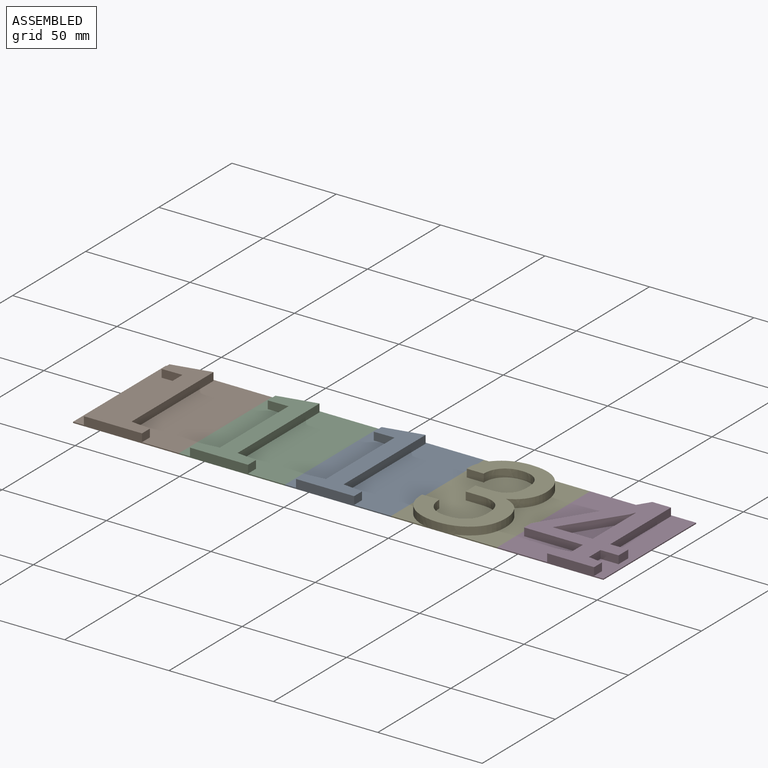
[diagram: assembled view]
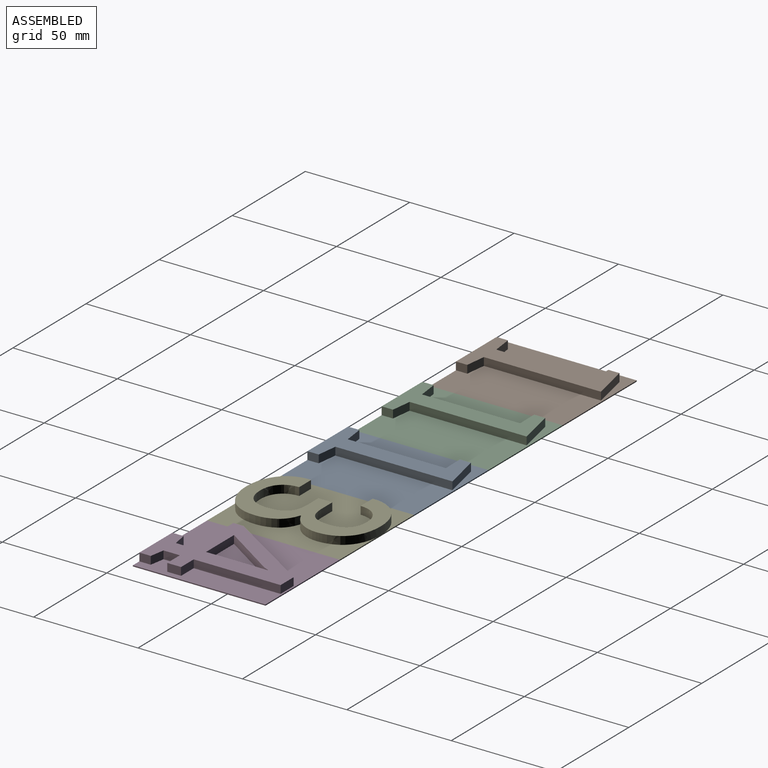
[diagram: assembled view, second angle]
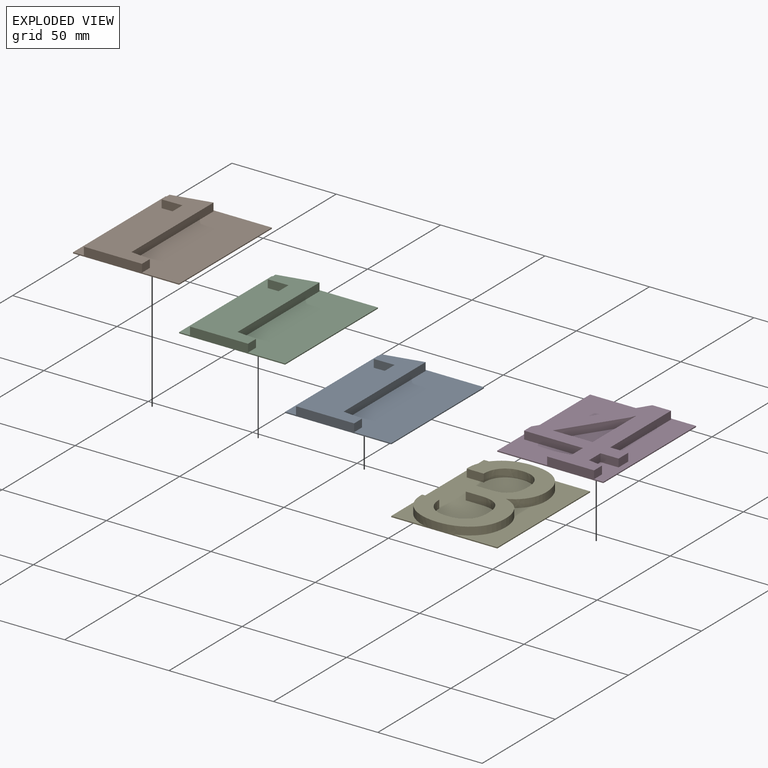
[diagram: exploded view]
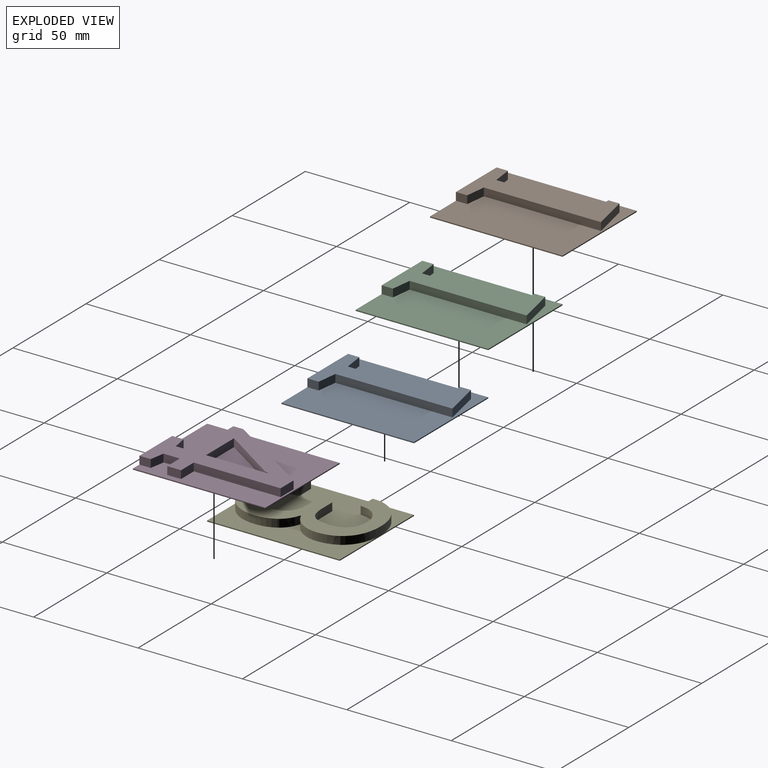
[diagram: exploded view, second angle]
ASSEMBLY  parts=5 mates=4
PART A: 16 faces, bbox 50.8x63.5x4.3 mm
  f0: plane 63.5x50.8mm, normal (0,0,1), area 2522.9mm2, adj f1,f2,f3,f4,f6,f7,f8,f9
  f1: plane 50.8x4.32mm, normal (0,-1,0), area 131.8mm2, adj f0,f2,f4,f5,f6,f14,f15
  f2: plane 63.5x0.51mm, normal (1,0,0), area 32.3mm2, adj f0,f1,f3,f5
  f3: plane 50.8x0.51mm, normal (0,1,0), area 25.8mm2, adj f0,f2,f4,f5
  f4: plane 63.5x0.51mm, normal (-1,0,0), area 32.3mm2, adj f0,f1,f3,f5
  f5: plane 63.5x50.8mm, normal (0,0,-1), area 3225.8mm2, adj f1,f2,f3,f4
  f6: plane 5.43x3.81mm, normal (1,0,0), area 20.7mm2, adj f0,f1,f7,f15
  f7: plane 9.65x3.81mm, normal (0.12,0.99,0), area 37mm2, adj f0,f6,f8,f15
  f8: plane 56.07x3.81mm, normal (1,0,0), area 213.6mm2, adj f0,f7,f9,f15
  f9: plane 18.34x3.96mm, normal (-0.21,0.98,0), area 71.5mm2, adj f0,f8,f10,f15
  f10: plane 5.31x3.81mm, normal (-1,0,0), area 20.2mm2, adj f0,f9,f11,f15
  f11: plane 9.85x3.81mm, normal (0.02,-1,0), area 37.5mm2, adj f0,f10,f12,f15
  f12: plane 46.99x3.81mm, normal (-1,0,0), area 179mm2, adj f0,f11,f13,f15
  f13: plane 9.69x3.81mm, normal (-0.12,0.99,0), area 37.2mm2, adj f0,f12,f14,f15
  f14: plane 5.43x3.81mm, normal (-1,0,0), area 20.7mm2, adj f0,f1,f13,f15
  f15: plane 62.7x27.99mm, normal (0,0,1), area 702.9mm2, adj f1,f6,f7,f8,f9,f10,f11,f12
PART B: same geometry as A
PART C: same geometry as A
PART D: 27 faces, bbox 50.8x63.5x4.3 mm
  f0: plane 63.5x50.8mm, normal (0,0,1), area 1796.9mm2, adj f1,f2,f3,f4,f10,f11,f12,f13
  f1: plane 50.8x4.32mm, normal (0,-1,0), area 111.5mm2, adj f0,f2,f4,f5,f10,f23,f25
  f2: plane 63.5x0.51mm, normal (1,0,0), area 32.3mm2, adj f0,f1,f3,f5
  f3: plane 50.8x0.51mm, normal (0,1,0), area 25.8mm2, adj f0,f2,f4,f5
  f4: plane 63.5x0.51mm, normal (-1,0,0), area 32.3mm2, adj f0,f1,f3,f5
  f5: plane 63.5x50.8mm, normal (0,0,-1), area 3225.8mm2, adj f1,f2,f3,f4
  f6: plane 19.13x3.81mm, normal (0,1,0), area 72.9mm2, adj f7,f24,f25,f26
  f7: plane 27.31x18mm, normal (0.84,-0.55,0), area 124.6mm2, adj f6,f8,f25,f26
  f8: plane 3.81x2.27mm, normal (0.93,-0.36,0), area 9.3mm2, adj f7,f9,f25,f26
  f9: plane 3.81x0.26mm, normal (-0.3,-0.95,0), area 1mm2, adj f8,f24,f25,f26
  f10: plane 5.43x3.81mm, normal (1,0,0), area 20.7mm2, adj f0,f1,f11,f25
  f11: plane 7.03x3.81mm, normal (0.17,0.99,0), area 27.2mm2, adj f0,f10,f12,f25
  f12: plane 7.84x3.81mm, normal (1,0,0), area 29.9mm2, adj f0,f11,f13,f25
  f13: plane 8.65x3.81mm, normal (0,-1,0), area 33mm2, adj f0,f12,f14,f25
  f14: plane 6.63x3.81mm, normal (1,0,0), area 25.3mm2, adj f0,f13,f15,f25
  f15: plane 8.65x3.81mm, normal (0,1,0), area 33mm2, adj f0,f14,f16,f25
  f16: plane 41.6x3.81mm, normal (1,0,0), area 158.5mm2, adj f0,f15,f17,f25
  f17: plane 8.96x3.81mm, normal (0,1,0), area 34.1mm2, adj f0,f16,f18,f25
  f18: plane 43.45x27.64mm, normal (-0.84,0.54,0), area 196.2mm2, adj f0,f17,f19,f25
  f19: plane 4.78x3.81mm, normal (-1,0,0), area 18.2mm2, adj f0,f18,f20,f25
  f20: plane 28.17x3.81mm, normal (0,-1,0), area 107.3mm2, adj f0,f19,f21,f25
  f21: plane 7.84x3.81mm, normal (-1,0,0), area 29.9mm2, adj f0,f20,f22,f25
  f22: plane 7.03x3.81mm, normal (-0.17,0.99,0), area 27.2mm2, adj f0,f21,f23,f25
  f23: plane 5.43x3.81mm, normal (-1,0,0), area 20.7mm2, adj f0,f1,f22,f25
  f24: plane 29.5x3.81mm, normal (-1,0,0), area 112.4mm2, adj f6,f9,f25,f26
  f25: plane 62.7x45.25mm, normal (0,0,1), area 1150.7mm2, adj f1,f6,f7,f8,f9,f10,f11,f12
  f26: plane 29.59x19.13mm, normal (0,0,1), area 278.2mm2, adj f6,f7,f8,f9,f24
PART E: 41 faces, bbox 50.8x64.5x4.3 mm
  f0: plane 63.77x34.33mm, normal (0,0,1), area 1464.4mm2, adj f2,f4,f5,f8,f9,f10,f11,f12
  f1: plane 63.79x25.77mm, normal (0,0,1), area 727.3mm2, adj f2,f3,f4,f31,f32,f33,f34,f35
  f2: plane 50.8x0.51mm, normal (0,-1,0), area 25.8mm2, adj f0,f1,f3,f5,f6,f40
  f3: plane 63.5x0.51mm, normal (1,0,0), area 32.3mm2, adj f1,f2,f4,f6
  f4: plane 50.8x0.51mm, normal (0,1,0), area 25.8mm2, adj f0,f1,f3,f5,f6,f7
  f5: plane 63.5x0.51mm, normal (-1,0,0), area 32.3mm2, adj f0,f2,f4,f6
  f6: plane 63.5x50.8mm, normal (0,0,-1), area 3225.8mm2, adj f2,f3,f4,f5
  f7: plane 5.13x0.12mm, normal (0,0,-1), area 0.4mm2, adj f4,f8,f38
  f8: extruded ~14.01x4.97mm, area 58.1mm2, adj f0,f7,f9,f38,f39
  f9: extruded ~12.09x5.15mm, area 51.7mm2, adj f0,f8,f10,f39
  f10: plane 3.81x0.26mm, normal (-0.95,-0.3,0), area 1mm2, adj f0,f9,f11,f39
  f11: plane 8.14x3.81mm, normal (0,-1,0), area 31mm2, adj f0,f10,f12,f39
  f12: extruded ~7.73x3.81mm, area 32.5mm2, adj f0,f11,f13,f39
  f13: extruded ~7.94x3.81mm, area 33.1mm2, adj f0,f12,f14,f39
  f14: extruded ~7.88x3.81mm, area 32.8mm2, adj f0,f13,f15,f39
  f15: extruded ~8.19x3.81mm, area 33.6mm2, adj f0,f14,f16,f39
  f16: extruded ~7.86x3.81mm, area 31.9mm2, adj f0,f15,f17,f39
  f17: extruded ~7.99x3.81mm, area 33.3mm2, adj f0,f16,f18,f39
  f18: plane 7.41x3.81mm, normal (0,1,0), area 28.2mm2, adj f0,f17,f19,f39
  f19: plane 6.63x3.81mm, normal (-1,0,0), area 25.3mm2, adj f0,f18,f20,f39
  f20: plane 7.41x3.81mm, normal (0,-1,0), area 28.2mm2, adj f0,f19,f21,f39
  f21: extruded ~8.57x3.81mm, area 35.2mm2, adj f0,f20,f22,f39
  f22: extruded ~8.57x3.81mm, area 35.1mm2, adj f0,f21,f23,f39
  f23: extruded ~8.65x3.81mm, area 35.9mm2, adj f0,f22,f24,f39
  f24: extruded ~8.45x3.81mm, area 34.9mm2, adj f0,f23,f25,f39
  f25: extruded ~8.33x3.81mm, area 34.5mm2, adj f0,f24,f26,f39
  f26: extruded ~7.88x3.81mm, area 33.1mm2, adj f0,f25,f27,f39
  f27: plane 8.09x3.81mm, normal (0,1,0), area 30.8mm2, adj f0,f26,f28,f39
  f28: plane 3.81x0.26mm, normal (-0.88,0.47,0), area 1.1mm2, adj f0,f27,f29,f39
  f29: extruded ~12.55x5.4mm, area 54mm2, adj f0,f28,f30,f39
  f30: extruded ~14.21x4.63mm, area 58.1mm2, adj f0,f29,f31,f39,f40
  f31: extruded ~14.37x4.91mm, area 59.2mm2, adj f1,f30,f32,f39,f40
  f32: extruded ~13.48x5.62mm, area 57.5mm2, adj f1,f31,f33,f39
  f33: extruded ~8.87x3.81mm, area 35.4mm2, adj f1,f32,f34,f39
  f34: extruded ~7.99x5.81mm, area 38.5mm2, adj f1,f33,f35,f39
  f35: extruded ~7.05x5.88mm, area 35.6mm2, adj f1,f34,f36,f39
  f36: extruded ~7.73x3.81mm, area 31.2mm2, adj f1,f35,f37,f39
  f37: extruded ~13.2x5.17mm, area 55.7mm2, adj f1,f36,f38,f39
  f38: extruded ~13.88x4.63mm, area 57mm2, adj f1,f7,f8,f37,f39
  f39: plane 64.52x39.78mm, normal (0,0,1), area 1043.1mm2, adj f8,f9,f10,f11,f12,f13,f14,f15
  f40: plane 14.19x1.01mm, normal (0,0,-1), area 8.7mm2, adj f2,f30,f31
PLACE A t=(144.52,-40.2,-3.89)mm
PLACE B t=(42.92,-40.2,-3.89)mm
PLACE C t=(93.72,-40.2,-3.89)mm
PLACE D t=(246.12,-40.2,-3.89)mm
PLACE E t=(195.32,-40.2,-3.89)mm
MATE fastened A.f0 <-> C.f0  axis (0,0,1) through (93.72,-8.45,-3.89)mm
MATE fastened B.f0 <-> C.f0  axis (0,0,1) through (42.92,-8.45,-3.89)mm
MATE fastened D.f0 <-> E.f1  axis (0,0,1) through (195.32,-8.45,-3.89)mm
MATE fastened E.f0 <-> A.f0  axis (0,0,1) through (144.52,-8.45,-3.89)mm
